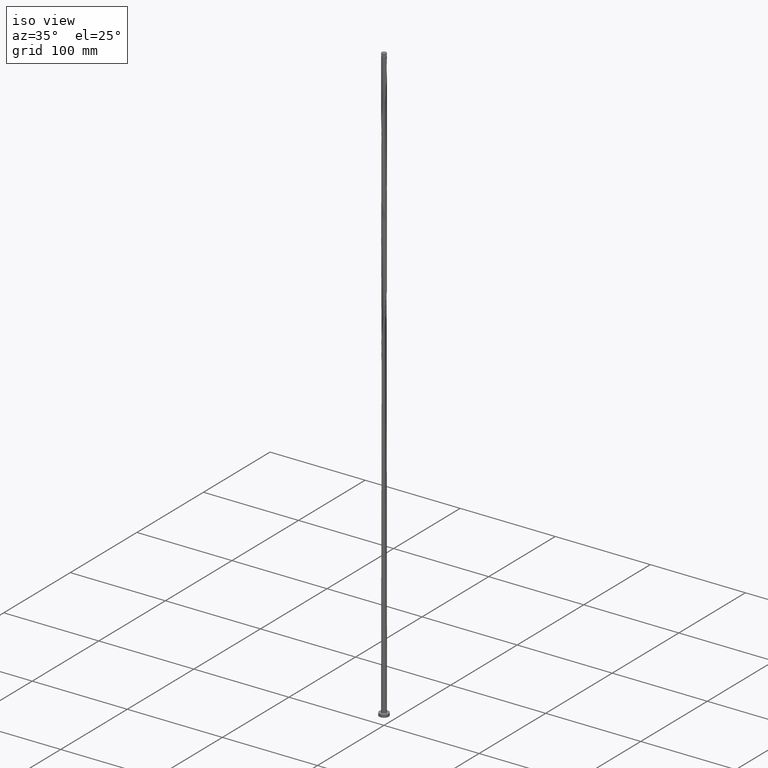
[diagram: clean part render]
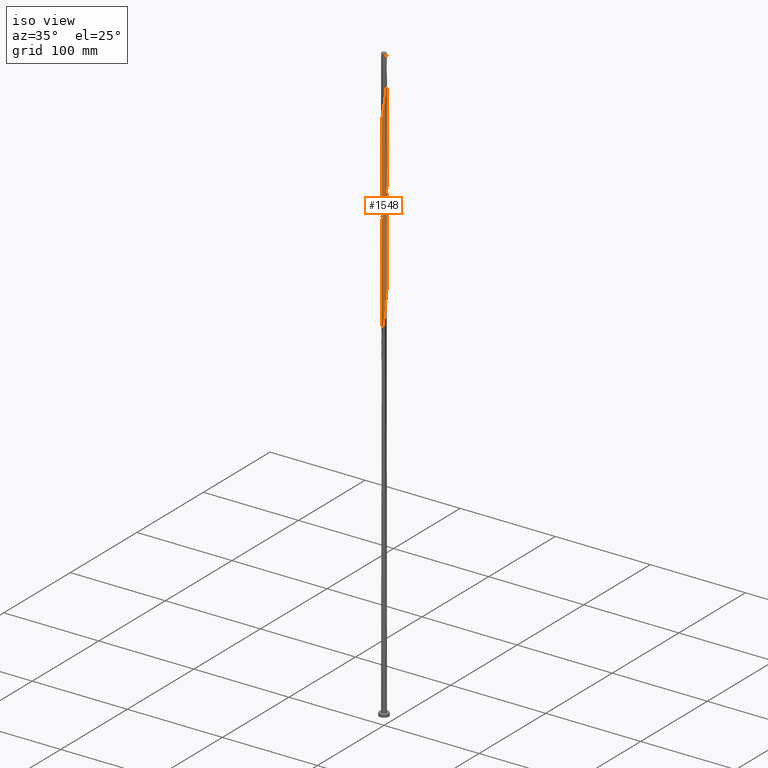
[diagram: same view with one face highlighted and labeled with its STEP entity id]
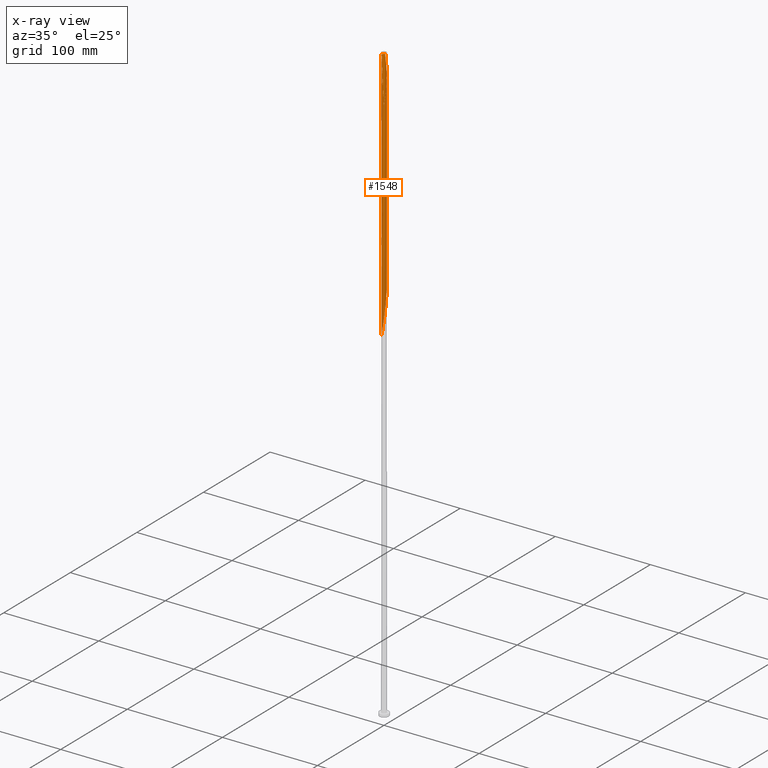
[diagram: x-ray of the same camera — body ghosted, the highlighted face saturated]
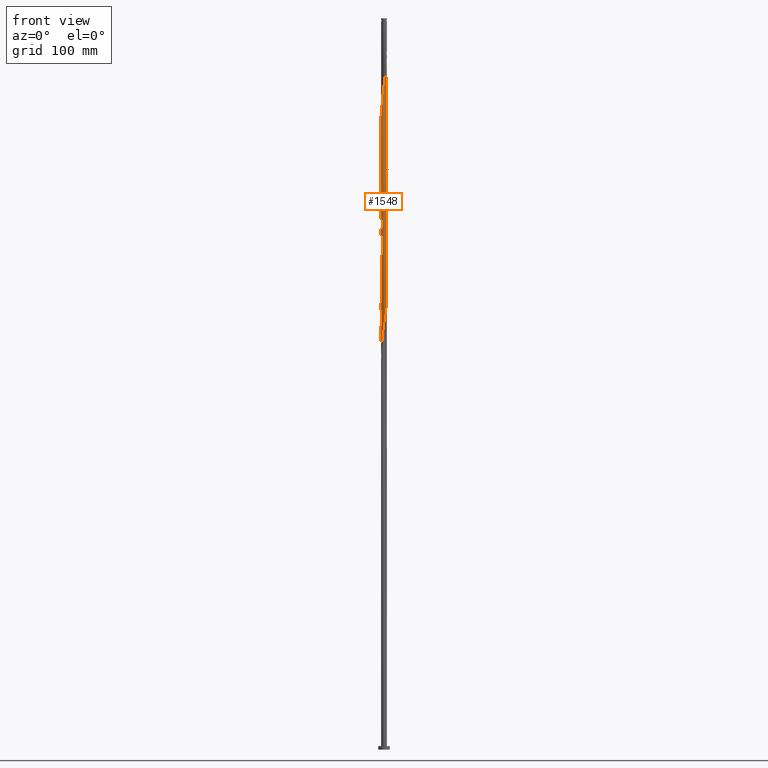
[diagram: same view with one face highlighted and labeled with its STEP entity id]
A machine part, iso view. The second image highlights one B-rep face of the part: STEP entity #1548.
The next image is the same camera in x-ray: the body ghosted, the highlighted face saturated — about 0% of this face is hidden behind the body in this view.
A second angle (front view) of the same face is appended — the face is thin or edge-on in the first view.
In plain terms, the highlighted cylindrical surface (bore or boss wall) has radius 2.5 mm, axis along (-0, -0, -1).
Its self-contained STEP definition (entity closure, byte-faithful):
#31 = CARTESIAN_POINT ( 'NONE',  ( 0.4211430053044492583, -2.464272421848512806, 371.2522197641264370 ) ) ;
#42 = CARTESIAN_POINT ( 'NONE',  ( -0.1927945373622882430, 2.503297068309350948, 527.2081021170677104 ) ) ;
#50 = ORIENTED_EDGE ( 'NONE', *, *, #945, .F. ) ;
#52 = CARTESIAN_POINT ( 'NONE',  ( 1.543983447371044759, 1.979843695872771203, 514.8551609405971021 ) ) ;
#65 = CARTESIAN_POINT ( 'NONE',  ( 2.254949153017928420, 1.079446301259922247, 507.1345727053028440 ) ) ;
#69 = CARTESIAN_POINT ( 'NONE',  ( 2.460496042343400358, -0.4996250308535271634, 496.3257491758914171 ) ) ;
#109 = CARTESIAN_POINT ( 'NONE',  ( 0.7245196518462906354, 2.403900418056342581, 416.0316315288324631 ) ) ;
#113 = CARTESIAN_POINT ( 'NONE',  ( -2.220327207212029030, -1.148976541498586190, 553.4581021170678241 ) ) ;
#119 = CARTESIAN_POINT ( 'NONE',  ( -2.326795562993841937, 0.9432329266279356750, 440.7375138817734523 ) ) ;
#123 = CARTESIAN_POINT ( 'NONE',  ( 0.7245196518462914126, -2.403900418056346133, 576.6198668229501436 ) ) ;
#130 = CARTESIAN_POINT ( 'NONE',  ( 2.414902095937012216, 0.6467208571238618475, 399.0463374111852204 ) ) ;
#133 = CARTESIAN_POINT ( 'NONE',  ( -1.971398031702793263, -1.537397086181176764, 556.5463374111852772 ) ) ;
#140 = CARTESIAN_POINT ( 'NONE',  ( -2.414902095937013105, -0.6467208571238608483, 451.5463374111852204 ) ) ;
#144 = CARTESIAN_POINT ( 'NONE',  ( 2.414902095937017101, -0.6467208571238620696, 593.6051609405969884 ) ) ;
#145 = CARTESIAN_POINT ( 'NONE',  ( 2.414902095937012216, 0.6467208571238618475, 504.0463374111851635 ) ) ;
#149 = CARTESIAN_POINT ( 'NONE',  ( -2.510407280010690911, 0.03900300388757658998, 446.9139844700088133 ) ) ;
#152 = CARTESIAN_POINT ( 'NONE',  ( -0.4211430053044500355, -2.464272421848518135, 568.8992785876558855 ) ) ;
#156 = VERTEX_POINT ( 'NONE', #1119 ) ;
#166 = CARTESIAN_POINT ( 'NONE',  ( 1.084070755988678858, -2.264609578239273002, 375.8845727053030146 ) ) ;
#182 = CARTESIAN_POINT ( 'NONE',  ( -0.4974937185533955808, 2.450000000000623679, 627.5757491758911328 ) ) ;
#185 =( BOUNDED_CURVE ( )  B_SPLINE_CURVE ( 2, ( #756, #1301, #200, #1645, #1812, #1217, #1847, #1059, #2012, #1013, #360, #747, #841, #1474, #587, #1206, #1709, #42, #1801, #370, #999, #213, #861, #851, #1484, #52, #700, #1963, #539, #1495, #65, #713, #145, #480, #1889, #2057, #788 ),
 .UNSPECIFIED., .F., .T. ) 
 B_SPLINE_CURVE_WITH_KNOTS ( ( 3, 2, 2, 2, 2, 2, 2, 2, 2, 2, 2, 2, 2, 2, 2, 2, 2, 2, 3 ),
 ( 0.4295293573162903833, 0.4338235294117647189, 0.4411764705882352811, 0.4485294117647058987, 0.4558823529411764608, 0.4632352941176470784, 0.4705882352941176405, 0.4779411764705882582, 0.4852941176470588203, 0.4926470588235294379, 0.5000000000000000000, 0.5073529411764705621, 0.5147058823529411242, 0.5220588235294117974, 0.5294117647058823595, 0.5367647058823529216, 0.5441176470588234837, 0.5514705882352941568, 0.5545293573162906053 ),
 .UNSPECIFIED. ) 
 CURVE ( )  GEOMETRIC_REPRESENTATION_ITEM ( )  RATIONAL_B_SPLINE_CURVE ( ( 0.9072066346053750951, 0.9068261157891420732, 0.9090909090910135326, 0.9052128875410444531, 0.9090909090910135326, 0.9052128875410444531, 0.9090909090910135326, 0.9052128875410444531, 0.9090909090910135326, 0.9052128875410444531, 0.9090909090910135326, 0.9052128875410444531, 0.9090909090910135326, 0.9052128875410444531, 0.9090909090910135326, 0.9052128875410444531, 0.9090909090910135326, 0.9052128875410444531, 0.9090909090910135326, 0.9052128875410444531, 0.9090909090910135326, 0.9052128875410444531, 0.9090909090910135326, 0.9052128875410444531, 0.9090909090910135326, 0.9052128875410444531, 0.9090909090910135326, 0.9052128875410444531, 0.9090909090910135326, 0.9052128875410444531, 0.9090909090910135326, 0.9052128875410444531, 0.9090909090910135326, 0.9052128875410444531, 0.9090909090910135326, 0.9074776808429156905, 0.9072066346053748731 ) ) 
 REPRESENTATION_ITEM ( '' )  );
#192 = CARTESIAN_POINT ( 'NONE',  ( -0.9392092612502221938, -2.316869863324613199, 361.9875138817735092 ) ) ;
#200 = CARTESIAN_POINT ( 'NONE',  ( -2.485451661177044524, 0.2693140173705519946, 550.3698668229499162 ) ) ;
#201 = CARTESIAN_POINT ( 'NONE',  ( 1.655335260655242058, -1.873463416998431441, 380.5169256464793079 ) ) ;
#213 = CARTESIAN_POINT ( 'NONE',  ( 0.7245196518462906354, 2.403900418056342581, 521.0316315288323494 ) ) ;
#227 = CARTESIAN_POINT ( 'NONE',  ( -2.500000000000004441, 1.165221987858569888E-15, 545.4775404011970750 ) ) ;
#241 = ORIENTED_EDGE ( 'NONE', *, *, #1791, .F. ) ;
#267 = CARTESIAN_POINT ( 'NONE',  ( 0.2704677852603449839, 2.496099581943655110, 419.1198668229501436 ) ) ;
#280 = CARTESIAN_POINT ( 'NONE',  ( 1.881489519591750481, 1.662426880650493599, 406.7669256464794785 ) ) ;
#283 = CARTESIAN_POINT ( 'NONE',  ( 1.655335260655246721, 1.873463416998434106, 612.1345727053030714 ) ) ;
#289 = CARTESIAN_POINT ( 'NONE',  ( 1.481733309335116155, -2.026852818003747281, 483.9728079994205814 ) ) ;
#292 = CARTESIAN_POINT ( 'NONE',  ( 0.9392092612502228599, -2.316869863324618084, 578.1639844700088133 ) ) ;
#300 = VERTEX_POINT ( 'NONE', #449 ) ;
#302 = CARTESIAN_POINT ( 'NONE',  ( 0.1927945373622882430, -2.503297068309350948, 474.7081021170677104 ) ) ;
#310 = CARTESIAN_POINT ( 'NONE',  ( -1.282902032661897174, 2.145731198121509919, 429.9286903523617980 ) ) ;
#346 = LINE ( 'NONE', #1596, #1380 ) ;
#351 = EDGE_CURVE ( 'NONE', #943, #1383, #1087, .T. ) ;
#360 = CARTESIAN_POINT ( 'NONE',  ( -1.655335260655242724, 1.873463416998431441, 538.0169256464794216 ) ) ;
#370 = CARTESIAN_POINT ( 'NONE',  ( 0.2704677852603449839, 2.496099581943655110, 524.1198668229501436 ) ) ;
#419 = ORIENTED_EDGE ( 'NONE', *, *, #1852, .T. ) ;
#425 = CARTESIAN_POINT ( 'NONE',  ( 1.828937211975369070, -1.720074015993116490, 487.0610432935383187 ) ) ;
#436 = CARTESIAN_POINT ( 'NONE',  ( -0.1927945373622882430, 2.503297068309350948, 422.2081021170677673 ) ) ;
#439 = CARTESIAN_POINT ( 'NONE',  ( 2.510407280010694464, 0.03900300388757734632, 598.2375138817736797 ) ) ;
#446 = CARTESIAN_POINT ( 'NONE',  ( -2.460496042343400358, 0.4996250308535268303, 443.8257491758912465 ) ) ;
#449 = CARTESIAN_POINT ( 'NONE',  ( 2.500000000000000000, 3.061616997868383141E-16, 627.5757491758912465 ) ) ;
#456 = CARTESIAN_POINT ( 'NONE',  ( 2.485451661177044524, -0.2693140173705528273, 392.8698668229500299 ) ) ;
#459 = CARTESIAN_POINT ( 'NONE',  ( -2.500000000000004441, 1.165221987858569888E-15, 545.4775404011970750 ) ) ;
#465 = CARTESIAN_POINT ( 'NONE',  ( -2.485451661177044524, 0.2693140173705519946, 445.3698668229499162 ) ) ;
#476 = CARTESIAN_POINT ( 'NONE',  ( -2.474829608658881241, -0.4229472235968175231, 345.0022197641265507 ) ) ;
#479 = CARTESIAN_POINT ( 'NONE',  ( 0.8667811146176472858, 2.344928676813478052, 618.3110432935382050 ) ) ;
#480 = CARTESIAN_POINT ( 'NONE',  ( 2.474829608658880797, 0.4229472235968167459, 502.5022197641264370 ) ) ;
#485 = CARTESIAN_POINT ( 'NONE',  ( -0.4974937185533177542, -2.449999999999997513, 365.0757491758911328 ) ) ;
#502 = CARTESIAN_POINT ( 'NONE',  ( -1.153898870654154640, -2.229839308592884262, 360.4433962347147258 ) ) ;
#515 = CARTESIAN_POINT ( 'NONE',  ( 1.971398031702789044, -1.537397086181174322, 383.6051609405969884 ) ) ;
#520 =( BOUNDED_CURVE ( )  B_SPLINE_CURVE ( 2, ( #864, #1987, #1183, #69, #716, #1335, #1978, #2047, #1575, #425, #1733, #289, #628, #1064, #1055, #1553, #1884, #302, #1243, #1854, #2026, #1585, #793, #914, #1222, #1075, #1876, #934, #595, #618, #1865, #1091, #140, #1895, #784, #149, #465, #446, #1724, #119, #1201, #1741, #1375, #1423, #1412, #944, #310, #1213, #2053, #1705, #2036, #436, #1234, #267, #762, #109, #904, #752, #1540, #2018, #1715, #280, #924, #1565, #1388, #607, #130, #772, #1399, #1083, #456, #668, #819, #801, #659, #1632, #515, #1454, #201, #1432, #1624, #166, #1276, #1902, #31, #1750, #1930, #810, #485, #1475, #192, #502, #833, #1614, #842, #1267, #1131, #1112, #1139, #1782, #1444, #476, #639, #1250, #650 ),
 .UNSPECIFIED., .F., .T. ) 
 B_SPLINE_CURVE_WITH_KNOTS ( ( 3, 2, 2, 2, 2, 2, 2, 2, 2, 2, 2, 2, 2, 2, 2, 2, 2, 2, 2, 2, 2, 2, 2, 2, 2, 2, 2, 2, 2, 2, 2, 2, 2, 2, 2, 2, 2, 2, 2, 2, 2, 2, 2, 2, 2, 2, 2, 2, 2, 2, 2, 2, 3 ),
 ( 0.5545293573162906053, 0.5588235294117647189, 0.5661764705882352811, 0.5735294117647058432, 0.5808823529411765163, 0.5882352941176470784, 0.5955882352941176405, 0.6029411764705882026, 0.6102941176470588758, 0.6176470588235294379, 0.6250000000000000000, 0.6323529411764705621, 0.6397058823529411242, 0.6470588235294117974, 0.6544117647058823595, 0.6617647058823529216, 0.6691176470588234837, 0.6764705882352941568, 0.6838235294117647189, 0.6911764705882352811, 0.6985294117647058432, 0.7058823529411765163, 0.7132352941176470784, 0.7205882352941176405, 0.7279411764705882026, 0.7352941176470588758, 0.7426470588235294379, 0.7500000000000000000, 0.7573529411764705621, 0.7647058823529411242, 0.7720588235294117974, 0.7794117647058823595, 0.7867647058823529216, 0.7941176470588234837, 0.8014705882352941568, 0.8088235294117647189, 0.8161764705882352811, 0.8235294117647058432, 0.8308823529411765163, 0.8382352941176470784, 0.8455882352941176405, 0.8529411764705882026, 0.8602941176470588758, 0.8676470588235294379, 0.8750000000000000000, 0.8823529411764705621, 0.8897058823529411242, 0.8970588235294117974, 0.9044117647058823595, 0.9117647058823529216, 0.9191176470588234837, 0.9264705882352941568, 0.9295293573162904943 ),
 .UNSPECIFIED. ) 
 CURVE ( )  GEOMETRIC_REPRESENTATION_ITEM ( )  RATIONAL_B_SPLINE_CURVE ( ( 0.9072066346053748731, 0.9068261157891420732, 0.9090909090910135326, 0.9052128875410444531, 0.9090909090910135326, 0.9052128875410444531, 0.9090909090910135326, 0.9052128875410444531, 0.9090909090910135326, 0.9052128875410444531, 0.9090909090910135326, 0.9052128875410444531, 0.9090909090910135326, 0.9052128875410444531, 0.9090909090910135326, 0.9052128875410444531, 0.9090909090910135326, 0.9052128875410444531, 0.9090909090910135326, 0.9052128875410444531, 0.9090909090910135326, 0.9052128875410444531, 0.9090909090910135326, 0.9052128875410444531, 0.9090909090910135326, 0.9052128875410444531, 0.9090909090910135326, 0.9052128875410444531, 0.9090909090910135326, 0.9052128875410444531, 0.9090909090910135326, 0.9052128875410444531, 0.9090909090910135326, 0.9052128875410444531, 0.9090909090910135326, 0.9052128875410444531, 0.9090909090910135326, 0.9052128875410444531, 0.9090909090910135326, 0.9052128875410444531, 0.9090909090910135326, 0.9052128875410444531, 0.9090909090910135326, 0.9052128875410444531, 0.9090909090910135326, 0.9052128875410444531, 0.9090909090910135326, 0.9052128875410444531, 0.9090909090910135326, 0.9052128875410444531, 0.9090909090910135326, 0.9052128875410444531, 0.9090909090910135326, 0.9052128875410444531, 0.9090909090910135326, 0.9052128875410444531, 0.9090909090910135326, 0.9052128875410444531, 0.9090909090910135326, 0.9052128875410444531, 0.9090909090910135326, 0.9052128875410444531, 0.9090909090910135326, 0.9052128875410444531, 0.9090909090910135326, 0.9052128875410444531, 0.9090909090910135326, 0.9052128875410444531, 0.9090909090910135326, 0.9052128875410444531, 0.9090909090910135326, 0.9052128875410444531, 0.9090909090910135326, 0.9052128875410444531, 0.9090909090910135326, 0.9052128875410444531, 0.9090909090910135326, 0.9052128875410444531, 0.9090909090910135326, 0.9052128875410444531, 0.9090909090910135326, 0.9052128875410444531, 0.9090909090910135326, 0.9052128875410444531, 0.9090909090910135326, 0.9052128875410444531, 0.9090909090910135326, 0.9052128875410444531, 0.9090909090910135326, 0.9052128875410444531, 0.9090909090910135326, 0.9052128875410444531, 0.9090909090910135326, 0.9052128875410444531, 0.9090909090910135326, 0.9052128875410444531, 0.9090909090910135326, 0.9052128875410444531, 0.9090909090910135326, 0.9052128875410444531, 0.9090909090910135326, 0.9052128875410444531, 0.9090909090910135326, 0.9074776808429158015, 0.9072066346053750951 ) ) 
 REPRESENTATION_ITEM ( '' )  );
#539 = CARTESIAN_POINT ( 'NONE',  ( 2.018206621206230178, 1.475412496259717043, 510.2228079994206382 ) ) ;
#557 = ORIENTED_EDGE ( 'NONE', *, *, #734, .F. ) ;
#587 = CARTESIAN_POINT ( 'NONE',  ( -0.8667811146176438442, 2.344928676813474944, 531.8404550582440606 ) ) ;
#595 = CARTESIAN_POINT ( 'NONE',  ( -2.018206621206230178, -1.475412496259716599, 457.7228079994205814 ) ) ;
#598 = CARTESIAN_POINT ( 'NONE',  ( 0.03883662394902780840, -2.499698325126506582, 571.9875138817735660 ) ) ;
#599 = CARTESIAN_POINT ( 'NONE',  ( 0.000000000000000000, 0.000000000000000000, 630.0000000000000000 ) ) ;
#607 = CARTESIAN_POINT ( 'NONE',  ( 2.354974583215144968, 0.8704944906509052283, 400.5904550582440606 ) ) ;
#608 = EDGE_CURVE ( 'NONE', #943, #1729, #346, .T. ) ;
#618 = CARTESIAN_POINT ( 'NONE',  ( -2.154923722820711873, -1.288398111868940710, 456.1786903523617411 ) ) ;
#621 = CARTESIAN_POINT ( 'NONE',  ( -2.393645802668625144, -0.7214289787407315302, 550.3698668229501436 ) ) ;
#628 = CARTESIAN_POINT ( 'NONE',  ( 1.282902032661897174, -2.145731198121509919, 482.4286903523617980 ) ) ;
#631 = CARTESIAN_POINT ( 'NONE',  ( 1.971398031702792819, 1.537397086181178096, 609.0463374111852772 ) ) ;
#639 = CARTESIAN_POINT ( 'NONE',  ( -2.492618444334785188, -0.1919721098546205429, 343.4581021170675967 ) ) ;
#641 = CARTESIAN_POINT ( 'NONE',  ( 1.481733309335118154, 2.026852818003751278, 613.6786903523616274 ) ) ;
#648 = AXIS2_PLACEMENT_3D ( 'NONE', #599, #1859, #1544 ) ;
#650 = CARTESIAN_POINT ( 'NONE',  ( -2.500000000000000000, 5.676722504952049697E-16, 342.1739579505852475 ) ) ;
#659 = CARTESIAN_POINT ( 'NONE',  ( 2.220327207212025034, -1.148976541498585080, 386.6933962347147826 ) ) ;
#668 = CARTESIAN_POINT ( 'NONE',  ( 2.460496042343400358, -0.4996250308535271634, 391.3257491758911897 ) ) ;
#672 = LINE ( 'NONE', #1635, #1640 ) ;
#686 = CARTESIAN_POINT ( 'NONE',  ( -2.500000000000000000, 5.676722504952050684E-16, 342.1739579505852475 ) ) ;
#700 = CARTESIAN_POINT ( 'NONE',  ( 1.712736483481397842, 1.821135288261630514, 513.3110432935382050 ) ) ;
#713 = CARTESIAN_POINT ( 'NONE',  ( 2.354974583215144968, 0.8704944906509052283, 505.5904550582441743 ) ) ;
#716 = CARTESIAN_POINT ( 'NONE',  ( 2.393645802668620703, -0.7214289787407308641, 494.7816315288322357 ) ) ;
#734 = EDGE_CURVE ( 'NONE', #300, #1042, #672, .T. ) ;
#747 = CARTESIAN_POINT ( 'NONE',  ( -1.481733309335115933, 2.026852818003747281, 536.4728079994206382 ) ) ;
#752 = CARTESIAN_POINT ( 'NONE',  ( 1.153898870654154640, 2.229839308592883818, 412.9433962347147826 ) ) ;
#755 = CARTESIAN_POINT ( 'NONE',  ( -1.282902032661900282, -2.145731198121513028, 562.7228079994206382 ) ) ;
#756 = CARTESIAN_POINT ( 'NONE',  ( -2.500000000000000000, -8.888552343280187789E-16, 552.1739579505851907 ) ) ;
#762 = CARTESIAN_POINT ( 'NONE',  ( 0.4974937185533181427, 2.449999999999997513, 417.5757491758911328 ) ) ;
#766 = CARTESIAN_POINT ( 'NONE',  ( -1.655335260655246277, -1.873463416998434328, 559.6345727053028440 ) ) ;
#772 = CARTESIAN_POINT ( 'NONE',  ( 2.474829608658880797, 0.4229472235968167459, 397.5022197641265507 ) ) ;
#775 = CARTESIAN_POINT ( 'NONE',  ( 2.460496042343404799, 0.4996250308535267193, 601.3257491758911328 ) ) ;
#784 = CARTESIAN_POINT ( 'NONE',  ( -2.492618444334785188, -0.1919721098546205429, 448.4581021170676536 ) ) ;
#787 = CARTESIAN_POINT ( 'NONE',  ( -2.500000000000003997, -0.1350499591981711434, 546.3814596332098290 ) ) ;
#788 = CARTESIAN_POINT ( 'NONE',  ( 2.500000000000000000, -7.170596848360485904E-16, 499.6739579505851339 ) ) ;
#793 = CARTESIAN_POINT ( 'NONE',  ( -0.9392092612502221938, -2.316869863324613199, 466.9875138817734523 ) ) ;
#795 = CARTESIAN_POINT ( 'NONE',  ( 1.543983447371046758, -1.979843695872774090, 582.7963374111851635 ) ) ;
#801 = CARTESIAN_POINT ( 'NONE',  ( 2.326795562993841937, -0.9432329266279350088, 388.2375138817736229 ) ) ;
#810 = CARTESIAN_POINT ( 'NONE',  ( -0.2704677852603446508, -2.496099581943655110, 366.6198668229500299 ) ) ;
#819 = CARTESIAN_POINT ( 'NONE',  ( 2.393645802668620703, -0.7214289787407308641, 389.7816315288323494 ) ) ;
#823 = DIRECTION ( 'NONE',  ( -0.000000000000000000, -0.000000000000000000, -1.000000000000000000 ) ) ;
#833 = CARTESIAN_POINT ( 'NONE',  ( -1.348941159012599034, -2.104841502232826844, 358.8992785876558287 ) ) ;
#841 = CARTESIAN_POINT ( 'NONE',  ( -1.282902032661897174, 2.145731198121509919, 534.9286903523616274 ) ) ;
#842 = CARTESIAN_POINT ( 'NONE',  ( -1.712736483481396732, -1.821135288261632068, 355.8110432935382619 ) ) ;
#851 = CARTESIAN_POINT ( 'NONE',  ( 1.153898870654154640, 2.229839308592883818, 517.9433962347147826 ) ) ;
#861 = CARTESIAN_POINT ( 'NONE',  ( 0.9392092612502216387, 2.316869863324613199, 519.4875138817734523 ) ) ;
#864 = CARTESIAN_POINT ( 'NONE',  ( 2.500000000000000000, -7.170596848360485904E-16, 499.6739579505851339 ) ) ;
#868 = ORIENTED_EDGE ( 'NONE', *, *, #608, .T. ) ;
#904 = CARTESIAN_POINT ( 'NONE',  ( 0.9392092612502216387, 2.316869863324613199, 414.4875138817735092 ) ) ;
#908 = CARTESIAN_POINT ( 'NONE',  ( 1.153898870654155751, -2.229839308592888703, 579.7081021170677104 ) ) ;
#914 = CARTESIAN_POINT ( 'NONE',  ( -1.153898870654154640, -2.229839308592884262, 465.4433962347146689 ) ) ;
#917 = CARTESIAN_POINT ( 'NONE',  ( -0.6494914732466116059, -2.425247775387680882, 567.3551609405971021 ) ) ;
#924 = CARTESIAN_POINT ( 'NONE',  ( 2.018206621206230178, 1.475412496259717043, 405.2228079994206382 ) ) ;
#928 = CARTESIAN_POINT ( 'NONE',  ( 2.485451661177049854, 0.2693140173705520501, 599.7816315288322357 ) ) ;
#934 = CARTESIAN_POINT ( 'NONE',  ( -1.881489519591750259, -1.662426880650493821, 459.2669256464793079 ) ) ;
#937 = CARTESIAN_POINT ( 'NONE',  ( 1.348941159012601698, -2.104841502232830397, 581.2522197641266075 ) ) ;
#943 = VERTEX_POINT ( 'NONE', #227 ) ;
#944 = CARTESIAN_POINT ( 'NONE',  ( -1.481733309335115933, 2.026852818003747281, 431.4728079994206951 ) ) ;
#945 = EDGE_CURVE ( 'NONE', #1042, #1729, #520, .T. ) ;
#975 = CARTESIAN_POINT ( 'NONE',  ( -0.2704677852603414867, 2.496099581943659551, 626.0316315288321221 ) ) ;
#987 = FACE_OUTER_BOUND ( 'NONE', #1816, .T. ) ;
#999 = CARTESIAN_POINT ( 'NONE',  ( 0.4974937185533181427, 2.449999999999997513, 522.5757491758911328 ) ) ;
#1013 = CARTESIAN_POINT ( 'NONE',  ( -1.828937211975369959, 1.720074015993116268, 539.5610432935383187 ) ) ;
#1014 = LINE ( 'NONE', #1683, #1504 ) ;
#1042 = VERTEX_POINT ( 'NONE', #1822 ) ;
#1055 = CARTESIAN_POINT ( 'NONE',  ( 0.8667811146176441772, -2.344928676813474500, 479.3404550582440606 ) ) ;
#1059 = CARTESIAN_POINT ( 'NONE',  ( -2.113858851430209462, 1.354720156369233486, 542.6492785876558855 ) ) ;
#1064 = CARTESIAN_POINT ( 'NONE',  ( 1.084070755988678858, -2.264609578239273002, 480.8845727053029009 ) ) ;
#1068 = CARTESIAN_POINT ( 'NONE',  ( 0.6494914732466108287, 2.425247775387680882, 619.8551609405972158 ) ) ;
#1069 = DIRECTION ( 'NONE',  ( -1.000000000000000000, 0.000000000000000000, 0.000000000000000000 ) ) ;
#1075 = CARTESIAN_POINT ( 'NONE',  ( -1.543983447371044981, -1.979843695872770315, 462.3551609405971021 ) ) ;
#1078 = DIRECTION ( 'NONE',  ( -0.000000000000000000, -0.000000000000000000, -1.000000000000000000 ) ) ;
#1083 = CARTESIAN_POINT ( 'NONE',  ( 2.510407280010690911, -0.03900300388757633324, 394.4139844700088702 ) ) ;
#1087 =( BOUNDED_CURVE ( )  B_SPLINE_CURVE ( 2, ( #459, #787, #1879, #1094, #621, #1720, #113, #1736, #133, #1557, #766, #1378, #755, #1754, #2021, #917, #152, #1727, #598, #1252, #1216, #123, #292, #908, #937, #795, #1898, #2041, #1426, #1393, #1869, #1227, #144, #2050, #1745, #439, #928, #775, #1405, #1415, #2056, #1238, #631, #1246, #283, #641, #2029, #1905, #479, #1068, #1943, #1305, #1142, #975, #182 ),
 .UNSPECIFIED., .F., .T. ) 
 B_SPLINE_CURVE_WITH_KNOTS ( ( 3, 2, 2, 2, 2, 2, 2, 2, 2, 2, 2, 2, 2, 2, 2, 2, 2, 2, 2, 2, 2, 2, 2, 2, 2, 2, 2, 3 ),
 ( 0.5545293573162906053, 0.5588235294117647189, 0.5661764705882352811, 0.5735294117647058432, 0.5808823529411764053, 0.5882352941176470784, 0.5955882352941176405, 0.6029411764705883137, 0.6102941176470588758, 0.6176470588235294379, 0.6250000000000000000, 0.6323529411764705621, 0.6397058823529411242, 0.6470588235294116863, 0.6544117647058822484, 0.6617647058823528106, 0.6691176470588234837, 0.6764705882352940458, 0.6838235294117646079, 0.6911764705882351700, 0.6985294117647057321, 0.7058823529411762943, 0.7132352941176469674, 0.7205882352941175295, 0.7279411764705882026, 0.7352941176470587648, 0.7426470588235293269, 0.7499999999999998890 ),
 .UNSPECIFIED. ) 
 CURVE ( )  GEOMETRIC_REPRESENTATION_ITEM ( )  RATIONAL_B_SPLINE_CURVE ( ( 0.9072066346053822006, 0.9068261157891492896, 0.9090909090910207491, 0.9052128875410516695, 0.9090909090910207491, 0.9052128875410516695, 0.9090909090910207491, 0.9052128875410516695, 0.9090909090910207491, 0.9052128875410516695, 0.9090909090910207491, 0.9052128875410516695, 0.9090909090910207491, 0.9052128875410516695, 0.9090909090910207491, 0.9052128875410516695, 0.9090909090910207491, 0.9052128875410516695, 0.9090909090910207491, 0.9052128875410516695, 0.9090909090910207491, 0.9052128875410516695, 0.9090909090910207491, 0.9052128875410516695, 0.9090909090910207491, 0.9052128875410516695, 0.9090909090910207491, 0.9052128875410516695, 0.9090909090910207491, 0.9052128875410516695, 0.9090909090910207491, 0.9052128875410516695, 0.9090909090910207491, 0.9052128875410516695, 0.9090909090910207491, 0.9052128875410516695, 0.9090909090910207491, 0.9052128875410516695, 0.9090909090910207491, 0.9052128875410516695, 0.9090909090910207491, 0.9052128875410516695, 0.9090909090910207491, 0.9052128875410516695, 0.9090909090910207491, 0.9052128875410516695, 0.9090909090910207491, 0.9052128875410516695, 0.9090909090910207491, 0.9052128875410516695, 0.9090909090910207491, 0.9052128875410516695, 0.9090909090910207491, 0.9052128875410517805, 0.9090909090910206380 ) ) 
 REPRESENTATION_ITEM ( '' )  );
#1091 = CARTESIAN_POINT ( 'NONE',  ( -2.354974583215144968, -0.8704944906509054503, 453.0904550582441743 ) ) ;
#1094 = CARTESIAN_POINT ( 'NONE',  ( -2.460496042343404799, -0.4996250308535269968, 548.8257491758912465 ) ) ;
#1105 = CARTESIAN_POINT ( 'NONE',  ( 0.000000000000000000, 0.000000000000000000, 627.5757491758912465 ) ) ;
#1112 = CARTESIAN_POINT ( 'NONE',  ( -2.154923722820711873, -1.288398111868940710, 351.1786903523617980 ) ) ;
#1119 = CARTESIAN_POINT ( 'NONE',  ( -2.499999999999935607, 0.000000000000000000, 627.5757491758912465 ) ) ;
#1131 = CARTESIAN_POINT ( 'NONE',  ( -2.018206621206230178, -1.475412496259716599, 352.7228079994205814 ) ) ;
#1139 = CARTESIAN_POINT ( 'NONE',  ( -2.254949153017927976, -1.079446301259922247, 349.6345727053030146 ) ) ;
#1142 = CARTESIAN_POINT ( 'NONE',  ( -0.03883662394902854392, 2.499698325126506582, 624.4875138817735660 ) ) ;
#1148 = CARTESIAN_POINT ( 'NONE',  ( -0.4974937185533955253, 2.450000000000623679, 627.5757491758911328 ) ) ;
#1183 = CARTESIAN_POINT ( 'NONE',  ( 2.485451661177044524, -0.2693140173705528273, 497.8698668229499162 ) ) ;
#1201 = CARTESIAN_POINT ( 'NONE',  ( -2.220327207212025034, 1.148976541498583970, 439.1933962347146121 ) ) ;
#1206 = CARTESIAN_POINT ( 'NONE',  ( -0.6494914732466096075, 2.425247775387677329, 530.2963374111852772 ) ) ;
#1213 = CARTESIAN_POINT ( 'NONE',  ( -1.084070755988679524, 2.264609578239272558, 428.3845727053030146 ) ) ;
#1216 = CARTESIAN_POINT ( 'NONE',  ( 0.4974937185533176431, -2.450000000000002398, 575.0757491758912465 ) ) ;
#1217 = CARTESIAN_POINT ( 'NONE',  ( -2.326795562993841937, 0.9432329266279356750, 545.7375138817736797 ) ) ;
#1222 = CARTESIAN_POINT ( 'NONE',  ( -1.348941159012599034, -2.104841502232826844, 463.8992785876558855 ) ) ;
#1227 = CARTESIAN_POINT ( 'NONE',  ( 2.354974583215147632, -0.8704944906509075597, 592.0610432935380913 ) ) ;
#1234 = CARTESIAN_POINT ( 'NONE',  ( 0.03883662394902820392, 2.499698325126503029, 420.6639844700087565 ) ) ;
#1238 = CARTESIAN_POINT ( 'NONE',  ( 2.113858851430213459, 1.354720156369234596, 607.5022197641264938 ) ) ;
#1242 = ORIENTED_EDGE ( 'NONE', *, *, #1400, .F. ) ;
#1243 = CARTESIAN_POINT ( 'NONE',  ( -0.03883662394902879372, -2.499698325126502141, 473.1639844700088133 ) ) ;
#1246 = CARTESIAN_POINT ( 'NONE',  ( 1.828937211975373289, 1.720074015993118932, 610.5904550582441743 ) ) ;
#1250 = CARTESIAN_POINT ( 'NONE',  ( -2.500000000000000444, -0.09612796971919979061, 342.8173637026448546 ) ) ;
#1252 = CARTESIAN_POINT ( 'NONE',  ( 0.2704677852603453170, -2.496099581943659995, 573.5316315288323494 ) ) ;
#1267 = CARTESIAN_POINT ( 'NONE',  ( -1.881489519591750259, -1.662426880650493821, 354.2669256464794216 ) ) ;
#1276 = CARTESIAN_POINT ( 'NONE',  ( 0.8667811146176441772, -2.344928676813474500, 374.3404550582441175 ) ) ;
#1301 = CARTESIAN_POINT ( 'NONE',  ( -2.500000000000000000, 0.1350499591981654535, 551.2700387185725504 ) ) ;
#1305 = CARTESIAN_POINT ( 'NONE',  ( 0.1927945373622899083, 2.503297068309353168, 622.9433962347146689 ) ) ;
#1335 = CARTESIAN_POINT ( 'NONE',  ( 2.326795562993841937, -0.9432329266279350088, 493.2375138817735660 ) ) ;
#1347 = ORIENTED_EDGE ( 'NONE', *, *, #351, .F. ) ;
#1375 = CARTESIAN_POINT ( 'NONE',  ( -1.971398031702789044, 1.537397086181174544, 436.1051609405969316 ) ) ;
#1378 = CARTESIAN_POINT ( 'NONE',  ( -1.481733309335118820, -2.026852818003750833, 561.1786903523617411 ) ) ;
#1380 = VECTOR ( 'NONE', #823, 1000.000000000000000 ) ;
#1383 = VERTEX_POINT ( 'NONE', #1148 ) ;
#1388 = CARTESIAN_POINT ( 'NONE',  ( 2.254949153017928420, 1.079446301259922247, 402.1345727053029009 ) ) ;
#1393 = CARTESIAN_POINT ( 'NONE',  ( 2.154923722820714538, -1.288398111868943596, 588.9728079994205245 ) ) ;
#1399 = CARTESIAN_POINT ( 'NONE',  ( 2.492618444334785188, 0.1919721098546201821, 395.9581021170675967 ) ) ;
#1400 = EDGE_CURVE ( 'NONE', #156, #1532, #1014, .T. ) ;
#1405 = CARTESIAN_POINT ( 'NONE',  ( 2.393645802668625588, 0.7214289787407308641, 602.8698668229498026 ) ) ;
#1412 = CARTESIAN_POINT ( 'NONE',  ( -1.655335260655242724, 1.873463416998431441, 433.0169256464793079 ) ) ;
#1415 = CARTESIAN_POINT ( 'NONE',  ( 2.326795562993845046, 0.9432329266279372293, 604.4139844700088133 ) ) ;
#1423 = CARTESIAN_POINT ( 'NONE',  ( -1.828937211975369959, 1.720074015993116268, 434.5610432935382050 ) ) ;
#1426 = CARTESIAN_POINT ( 'NONE',  ( 2.018206621206233731, -1.475412496259720152, 587.4286903523618548 ) ) ;
#1432 = CARTESIAN_POINT ( 'NONE',  ( 1.481733309335116155, -2.026852818003747281, 378.9728079994205814 ) ) ;
#1434 = DIRECTION ( 'NONE',  ( -0.000000000000000000, -0.000000000000000000, -1.000000000000000000 ) ) ;
#1444 = CARTESIAN_POINT ( 'NONE',  ( -2.414902095937013105, -0.6467208571238608483, 346.5463374111852772 ) ) ;
#1454 = CARTESIAN_POINT ( 'NONE',  ( 1.828937211975369070, -1.720074015993116490, 382.0610432935382619 ) ) ;
#1474 = CARTESIAN_POINT ( 'NONE',  ( -1.084070755988679524, 2.264609578239272558, 533.3845727053030714 ) ) ;
#1475 = CARTESIAN_POINT ( 'NONE',  ( -0.7245196518462901913, -2.403900418056342581, 363.5316315288323494 ) ) ;
#1484 = CARTESIAN_POINT ( 'NONE',  ( 1.348941159012599256, 2.104841502232826844, 516.3992785876557718 ) ) ;
#1495 = CARTESIAN_POINT ( 'NONE',  ( 2.154923722820711429, 1.288398111868941598, 508.6786903523619117 ) ) ;
#1504 = VECTOR ( 'NONE', #1672, 1000.000000000000000 ) ;
#1532 = VERTEX_POINT ( 'NONE', #1697 ) ;
#1540 = CARTESIAN_POINT ( 'NONE',  ( 1.348941159012599256, 2.104841502232826844, 411.3992785876557718 ) ) ;
#1544 = DIRECTION ( 'NONE',  ( -1.000000000000000000, 0.000000000000000000, 0.000000000000000000 ) ) ;
#1548 = ADVANCED_FACE ( 'NONE', ( #987 ), #1975, .T. ) ;
#1553 = CARTESIAN_POINT ( 'NONE',  ( 0.6494914732466091634, -2.425247775387676441, 477.7963374111853341 ) ) ;
#1557 = CARTESIAN_POINT ( 'NONE',  ( -1.828937211975373289, -1.720074015993118932, 558.0904550582439470 ) ) ;
#1565 = CARTESIAN_POINT ( 'NONE',  ( 2.154923722820711429, 1.288398111868941598, 403.6786903523617980 ) ) ;
#1575 = CARTESIAN_POINT ( 'NONE',  ( 1.971398031702789044, -1.537397086181174322, 488.6051609405971590 ) ) ;
#1585 = CARTESIAN_POINT ( 'NONE',  ( -0.7245196518462901913, -2.403900418056342581, 468.5316315288323494 ) ) ;
#1596 = CARTESIAN_POINT ( 'NONE',  ( -2.500000000000000000, 0.000000000000000000, 630.0000000000000000 ) ) ;
#1614 = CARTESIAN_POINT ( 'NONE',  ( -1.543983447371044981, -1.979843695872770315, 357.3551609405970453 ) ) ;
#1624 = CARTESIAN_POINT ( 'NONE',  ( 1.282902032661897174, -2.145731198121509919, 377.4286903523617980 ) ) ;
#1632 = CARTESIAN_POINT ( 'NONE',  ( 2.113858851430209462, -1.354720156369233486, 385.1492785876558287 ) ) ;
#1635 = CARTESIAN_POINT ( 'NONE',  ( 2.500000000000000000, 3.061616997868383141E-16, 630.0000000000000000 ) ) ;
#1640 = VECTOR ( 'NONE', #1434, 1000.000000000000000 ) ;
#1645 = CARTESIAN_POINT ( 'NONE',  ( -2.460496042343400358, 0.4996250308535268303, 548.8257491758913602 ) ) ;
#1672 = DIRECTION ( 'NONE',  ( -0.000000000000000000, -0.000000000000000000, -1.000000000000000000 ) ) ;
#1683 = CARTESIAN_POINT ( 'NONE',  ( -2.500000000000000000, 0.000000000000000000, 630.0000000000000000 ) ) ;
#1697 = CARTESIAN_POINT ( 'NONE',  ( -2.500000000000000000, -8.888552343280187789E-16, 552.1739579505851907 ) ) ;
#1705 = CARTESIAN_POINT ( 'NONE',  ( -0.6494914732466096075, 2.425247775387677329, 425.2963374111852772 ) ) ;
#1709 = CARTESIAN_POINT ( 'NONE',  ( -0.4211430053044488142, 2.464272421848513250, 528.7522197641264938 ) ) ;
#1712 = CIRCLE ( 'NONE', #2035, 2.499999999999935607 ) ;
#1715 = CARTESIAN_POINT ( 'NONE',  ( 1.712736483481397842, 1.821135288261630514, 408.3110432935382619 ) ) ;
#1720 = CARTESIAN_POINT ( 'NONE',  ( -2.326795562993845046, -0.9432329266279370072, 551.9139844700088133 ) ) ;
#1724 = CARTESIAN_POINT ( 'NONE',  ( -2.393645802668620703, 0.7214289787407309751, 442.2816315288322926 ) ) ;
#1727 = CARTESIAN_POINT ( 'NONE',  ( -0.1927945373622895475, -2.503297068309354056, 570.4433962347148963 ) ) ;
#1729 = VERTEX_POINT ( 'NONE', #686 ) ;
#1733 = CARTESIAN_POINT ( 'NONE',  ( 1.655335260655242058, -1.873463416998431441, 485.5169256464793079 ) ) ;
#1736 = CARTESIAN_POINT ( 'NONE',  ( -2.113858851430213459, -1.354720156369235484, 555.0022197641263801 ) ) ;
#1741 = CARTESIAN_POINT ( 'NONE',  ( -2.113858851430209462, 1.354720156369233486, 437.6492785876558855 ) ) ;
#1745 = CARTESIAN_POINT ( 'NONE',  ( 2.492618444334789185, -0.1919721098546218196, 596.6933962347146689 ) ) ;
#1750 = CARTESIAN_POINT ( 'NONE',  ( 0.1927945373622882430, -2.503297068309350948, 369.7081021170675967 ) ) ;
#1754 = CARTESIAN_POINT ( 'NONE',  ( -1.084070755988681523, -2.264609578239276111, 564.2669256464794216 ) ) ;
#1782 = CARTESIAN_POINT ( 'NONE',  ( -2.354974583215144968, -0.8704944906509054503, 348.0904550582442312 ) ) ;
#1791 = EDGE_CURVE ( 'NONE', #1532, #1042, #185, .T. ) ;
#1801 = CARTESIAN_POINT ( 'NONE',  ( 0.03883662394902820392, 2.499698325126503029, 525.6639844700088133 ) ) ;
#1812 = CARTESIAN_POINT ( 'NONE',  ( -2.393645802668620703, 0.7214289787407309751, 547.2816315288321221 ) ) ;
#1816 = EDGE_LOOP ( 'NONE', ( #1242, #419, #1347, #868, #50, #557, #1960, #241 ) ) ;
#1822 = CARTESIAN_POINT ( 'NONE',  ( 2.500000000000000000, -7.170596848360485904E-16, 499.6739579505851339 ) ) ;
#1847 = CARTESIAN_POINT ( 'NONE',  ( -2.220327207212025034, 1.148976541498583970, 544.1933962347146689 ) ) ;
#1852 = EDGE_CURVE ( 'NONE', #156, #1383, #1712, .T. ) ;
#1854 = CARTESIAN_POINT ( 'NONE',  ( -0.2704677852603446508, -2.496099581943655110, 471.6198668229499731 ) ) ;
#1859 = DIRECTION ( 'NONE',  ( -0.000000000000000000, -0.000000000000000000, -1.000000000000000000 ) ) ;
#1865 = CARTESIAN_POINT ( 'NONE',  ( -2.254949153017927976, -1.079446301259922247, 454.6345727053029577 ) ) ;
#1869 = CARTESIAN_POINT ( 'NONE',  ( 2.254949153017931085, -1.079446301259925356, 590.5169256464795353 ) ) ;
#1876 = CARTESIAN_POINT ( 'NONE',  ( -1.712736483481396732, -1.821135288261632068, 460.8110432935382619 ) ) ;
#1879 = CARTESIAN_POINT ( 'NONE',  ( -2.485451661177049854, -0.2693140173705516061, 547.2816315288322357 ) ) ;
#1884 = CARTESIAN_POINT ( 'NONE',  ( 0.4211430053044492583, -2.464272421848512806, 476.2522197641264370 ) ) ;
#1889 = CARTESIAN_POINT ( 'NONE',  ( 2.492618444334785188, 0.1919721098546201821, 500.9581021170675967 ) ) ;
#1895 = CARTESIAN_POINT ( 'NONE',  ( -2.474829608658881241, -0.4229472235968175231, 450.0022197641264370 ) ) ;
#1898 = CARTESIAN_POINT ( 'NONE',  ( 1.712736483481400285, -1.821135288261634955, 584.3404550582439470 ) ) ;
#1902 = CARTESIAN_POINT ( 'NONE',  ( 0.6494914732466091634, -2.425247775387676441, 372.7963374111852204 ) ) ;
#1905 = CARTESIAN_POINT ( 'NONE',  ( 1.084070755988681523, 2.264609578239276111, 616.7669256464795353 ) ) ;
#1930 = CARTESIAN_POINT ( 'NONE',  ( -0.03883662394902879372, -2.499698325126502141, 368.1639844700088133 ) ) ;
#1943 = CARTESIAN_POINT ( 'NONE',  ( 0.4211430053044503130, 2.464272421848518135, 621.3992785876557718 ) ) ;
#1960 = ORIENTED_EDGE ( 'NONE', *, *, #734, .T. ) ;
#1963 = CARTESIAN_POINT ( 'NONE',  ( 1.881489519591750481, 1.662426880650493599, 511.7669256464794216 ) ) ;
#1975 = CYLINDRICAL_SURFACE ( 'NONE', #648, 2.500000000000000000 ) ;
#1978 = CARTESIAN_POINT ( 'NONE',  ( 2.220327207212025034, -1.148976541498585080, 491.6933962347146121 ) ) ;
#1987 = CARTESIAN_POINT ( 'NONE',  ( 2.499999999999999112, -0.1350499591981715874, 498.7700387185724935 ) ) ;
#2012 = CARTESIAN_POINT ( 'NONE',  ( -1.971398031702789044, 1.537397086181174544, 541.1051609405969884 ) ) ;
#2018 = CARTESIAN_POINT ( 'NONE',  ( 1.543983447371044759, 1.979843695872771203, 409.8551609405971590 ) ) ;
#2021 = CARTESIAN_POINT ( 'NONE',  ( -0.8667811146176461756, -2.344928676813478052, 565.8110432935383187 ) ) ;
#2026 = CARTESIAN_POINT ( 'NONE',  ( -0.4974937185533177542, -2.449999999999997513, 470.0757491758911328 ) ) ;
#2029 = CARTESIAN_POINT ( 'NONE',  ( 1.282902032661899838, 2.145731198121513472, 615.2228079994205245 ) ) ;
#2035 = AXIS2_PLACEMENT_3D ( 'NONE', #1105, #1078, #1069 ) ;
#2036 = CARTESIAN_POINT ( 'NONE',  ( -0.4211430053044488142, 2.464272421848513250, 423.7522197641264938 ) ) ;
#2041 = CARTESIAN_POINT ( 'NONE',  ( 1.881489519591752924, -1.662426880650497152, 585.8845727053030714 ) ) ;
#2047 = CARTESIAN_POINT ( 'NONE',  ( 2.113858851430209462, -1.354720156369233486, 490.1492785876559424 ) ) ;
#2050 = CARTESIAN_POINT ( 'NONE',  ( 2.474829608658885238, -0.4229472235968187999, 595.1492785876557718 ) ) ;
#2053 = CARTESIAN_POINT ( 'NONE',  ( -0.8667811146176438442, 2.344928676813474944, 426.8404550582440606 ) ) ;
#2056 = CARTESIAN_POINT ( 'NONE',  ( 2.220327207212029030, 1.148976541498586190, 605.9581021170677104 ) ) ;
#2057 = CARTESIAN_POINT ( 'NONE',  ( 2.500000000000000888, 0.09612796971919622402, 500.3173637026448546 ) ) ;